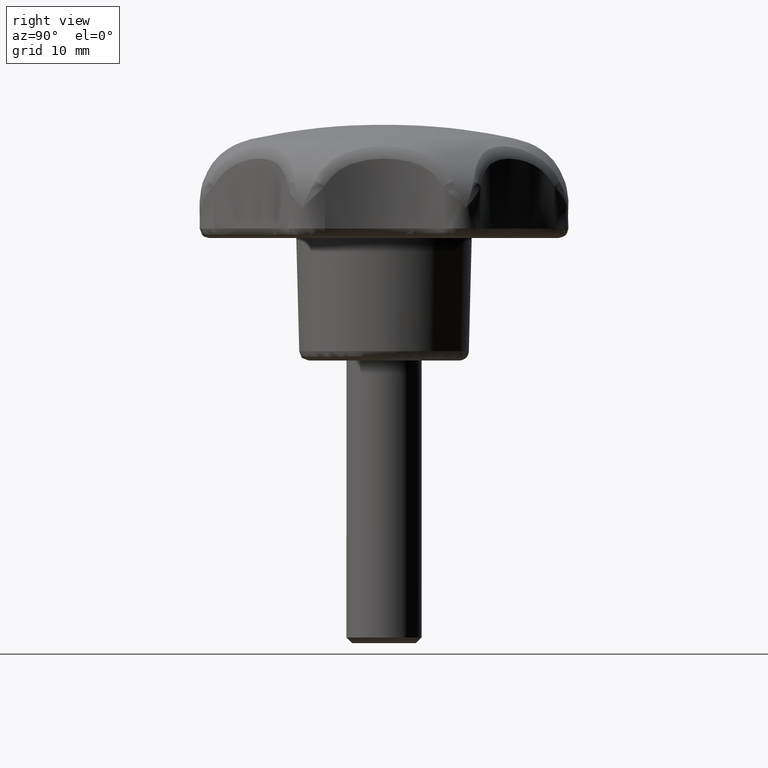
[diagram: clean part render]
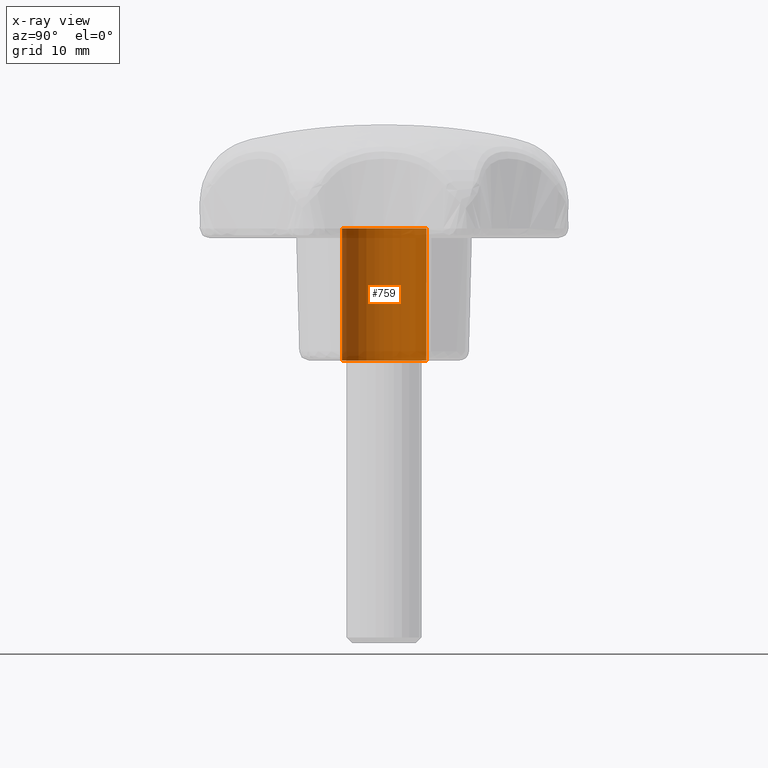
[diagram: x-ray — body ghosted, one internal face saturated and labeled with its STEP entity id]
A machine part, right view, then the same camera in x-ray: the body is ghosted and one INTERNAL B-rep face — a face not visible from any outside direction — is saturated and labeled: STEP entity #759.
In plain terms, the highlighted face is a freeform B-spline surface patch.
Its self-contained STEP definition (entity closure, byte-faithful):
#657=CARTESIAN_POINT('',(0.531154055955413,-4.468542868636499,14.350000000000001));
#658=CARTESIAN_POINT('',(0.403266278870900,-4.483744269518725,14.350000000000001));
#659=CARTESIAN_POINT('',(0.274718427906856,-4.491606592898400,14.350000000000000));
#660=CARTESIAN_POINT('',(-4.216888164991543,-4.766325020805256,14.350000000000003));
#661=CARTESIAN_POINT('',(-4.491606592898400,-0.274718427906856,14.350000000000000));
#662=CARTESIAN_POINT('',(-4.766325020805256,4.216888164991543,14.350000000000003));
#663=CARTESIAN_POINT('',(-0.274718427906856,4.491606592898400,14.350000000000000));
#664=CARTESIAN_POINT('',(0.531154055955413,-4.468542868636499,-0.358750000000001));
#665=CARTESIAN_POINT('',(0.403266278870900,-4.483744269518725,-0.358750000000001));
#666=CARTESIAN_POINT('',(0.274718427906856,-4.491606592898400,-0.358750000000001));
#667=CARTESIAN_POINT('',(-4.216888164991543,-4.766325020805256,-0.358750000000001));
#668=CARTESIAN_POINT('',(-4.491606592898400,-0.274718427906856,-0.358750000000001));
#669=CARTESIAN_POINT('',(-4.766325020805256,4.216888164991543,-0.358750000000001));
#670=CARTESIAN_POINT('',(-0.274718427906856,4.491606592898400,-0.358750000000001));
#678=(BOUNDED_SURFACE()B_SPLINE_SURFACE(2,1,((#657,#664),(#658,#665),(#659,#666),(#660,#667),(#661,#668),(#662,#669),(#663,#670)),.UNSPECIFIED.,.F.,.F.,.U.)B_SPLINE_SURFACE_WITH_KNOTS((3,2,2,3),(2,2),(0.0,0.298233764908629,7.754077887624337,15.209922010340049),(0.0,14.708750000000000),.UNSPECIFIED.)GEOMETRIC_REPRESENTATION_ITEM()RATIONAL_B_SPLINE_SURFACE(((0.977505800795127,0.977505800795127),(0.988284271247462,0.988284271247462),(1.0,1.0),(0.707106781186548,0.707106781186548),(1.0,1.0),(0.707106781186548,0.707106781186548),(1.0,1.0)))REPRESENTATION_ITEM('')SURFACE());
#679=CARTESIAN_POINT('',(0.531154056011306,-4.468542868629855,14.0));
#680=VERTEX_POINT('',#679);
#681=CARTESIAN_POINT('',(-4.500000000000000,0.0,14.0));
#682=VERTEX_POINT('',#681);
#683=CARTESIAN_POINT('',(0.531154056011306,-4.468542868629855,14.000000000000004));
#684=CARTESIAN_POINT('',(0.266508538490079,-4.500000000000001,14.0));
#685=CARTESIAN_POINT('',(0.0,-4.500000000000000,14.0));
#686=CARTESIAN_POINT('',(-4.500000000000000,-4.500000000000000,13.999999999999998));
#687=CARTESIAN_POINT('',(-4.500000000000000,0.0,14.0));
#695=(BOUNDED_CURVE()B_SPLINE_CURVE(2,(#683,#684,#685,#686,#687),.UNSPECIFIED.,.F.,.U.)B_SPLINE_CURVE_WITH_KNOTS((3,2,3),(0.229562473511416,0.250000000000000,0.500000000000000),.UNSPECIFIED.)CURVE()GEOMETRIC_REPRESENTATION_ITEM()RATIONAL_B_SPLINE_CURVE((0.956026754179599,0.976055948328694,1.0,0.707106781186547,1.0))REPRESENTATION_ITEM(''));
#696=EDGE_CURVE('',#680,#682,#695,.T.);
#697=ORIENTED_EDGE('',*,*,#696,.F.);
#698=CARTESIAN_POINT('',(0.531154056011306,-4.468542868629855,-8.518285E-017));
#699=VERTEX_POINT('',#698);
#700=CARTESIAN_POINT('',(0.531154056011306,-4.468542868629855,14.0));
#701=CARTESIAN_POINT('',(0.531154056011306,-4.468542868629855,-8.518285E-017));
#702=QUASI_UNIFORM_CURVE('',1,(#700,#701),.UNSPECIFIED.,.F.,.U.);
#703=EDGE_CURVE('',#680,#699,#702,.T.);
#704=ORIENTED_EDGE('',*,*,#703,.T.);
#705=CARTESIAN_POINT('',(-4.500000000000000,0.0,0.0));
#706=VERTEX_POINT('',#705);
#707=CARTESIAN_POINT('',(0.531154056011306,-4.468542868629855,-8.518285E-017));
#708=CARTESIAN_POINT('',(0.266508538490079,-4.500000000000001,0.0));
#709=CARTESIAN_POINT('',(0.0,-4.500000000000000,0.0));
#710=CARTESIAN_POINT('',(-4.500000000000000,-4.500000000000000,0.0));
#711=CARTESIAN_POINT('',(-4.500000000000000,0.0,0.0));
#719=(BOUNDED_CURVE()B_SPLINE_CURVE(2,(#707,#708,#709,#710,#711),.UNSPECIFIED.,.F.,.U.)B_SPLINE_CURVE_WITH_KNOTS((3,2,3),(0.229562473511416,0.250000000000000,0.500000000000000),.UNSPECIFIED.)CURVE()GEOMETRIC_REPRESENTATION_ITEM()RATIONAL_B_SPLINE_CURVE((0.956026754179599,0.976055948328694,1.0,0.707106781186547,1.0))REPRESENTATION_ITEM(''));
#720=EDGE_CURVE('',#699,#706,#719,.T.);
#721=ORIENTED_EDGE('',*,*,#720,.T.);
#722=CARTESIAN_POINT('',(-0.274716879423076,4.491606687607190,-9.159340E-016));
#723=VERTEX_POINT('',#722);
#724=CARTESIAN_POINT('',(-4.500000000000000,0.0,0.0));
#725=CARTESIAN_POINT('',(-4.500000000000002,4.233178763193122,0.0));
#726=CARTESIAN_POINT('',(-0.274716879423077,4.491606687607190,-9.159340E-016));
#734=(BOUNDED_CURVE()B_SPLINE_CURVE(2,(#724,#725,#726),.UNSPECIFIED.,.F.,.U.)B_SPLINE_CURVE_WITH_KNOTS((3,3),(0.500000000000000,0.739333021727569),.UNSPECIFIED.)CURVE()GEOMETRIC_REPRESENTATION_ITEM()RATIONAL_B_SPLINE_CURVE((1.0,0.719603923591449,0.976072169162201))REPRESENTATION_ITEM(''));
#735=EDGE_CURVE('',#706,#723,#734,.T.);
#736=ORIENTED_EDGE('',*,*,#735,.T.);
#737=CARTESIAN_POINT('',(-0.274716860496821,4.491606688764756,14.0));
#738=VERTEX_POINT('',#737);
#739=CARTESIAN_POINT('',(-0.274716860496821,4.491606688764756,14.0));
#740=CARTESIAN_POINT('',(-0.274716879423076,4.491606687607190,-9.159340E-016));
#741=QUASI_UNIFORM_CURVE('',1,(#739,#740),.UNSPECIFIED.,.F.,.U.);
#742=EDGE_CURVE('',#738,#723,#741,.T.);
#743=ORIENTED_EDGE('',*,*,#742,.F.);
#744=CARTESIAN_POINT('',(-4.500000000000000,0.0,14.0));
#745=CARTESIAN_POINT('',(-4.500000000000001,4.233178781063772,13.999999999999993));
#746=CARTESIAN_POINT('',(-0.274716860496821,4.491606688764756,14.000000000000009));
#754=(BOUNDED_CURVE()B_SPLINE_CURVE(2,(#744,#745,#746),.UNSPECIFIED.,.F.,.U.)B_SPLINE_CURVE_WITH_KNOTS((3,3),(0.500000000000000,0.739333022454629),.UNSPECIFIED.)CURVE()GEOMETRIC_REPRESENTATION_ITEM()RATIONAL_B_SPLINE_CURVE((1.0,0.719603922739646,0.976072170720429))REPRESENTATION_ITEM(''));
#755=EDGE_CURVE('',#682,#738,#754,.T.);
#756=ORIENTED_EDGE('',*,*,#755,.F.);
#757=EDGE_LOOP('',(#697,#704,#721,#736,#743,#756));
#758=FACE_OUTER_BOUND('',#757,.T.);
#759=ADVANCED_FACE('',(#758),#678,.F.);